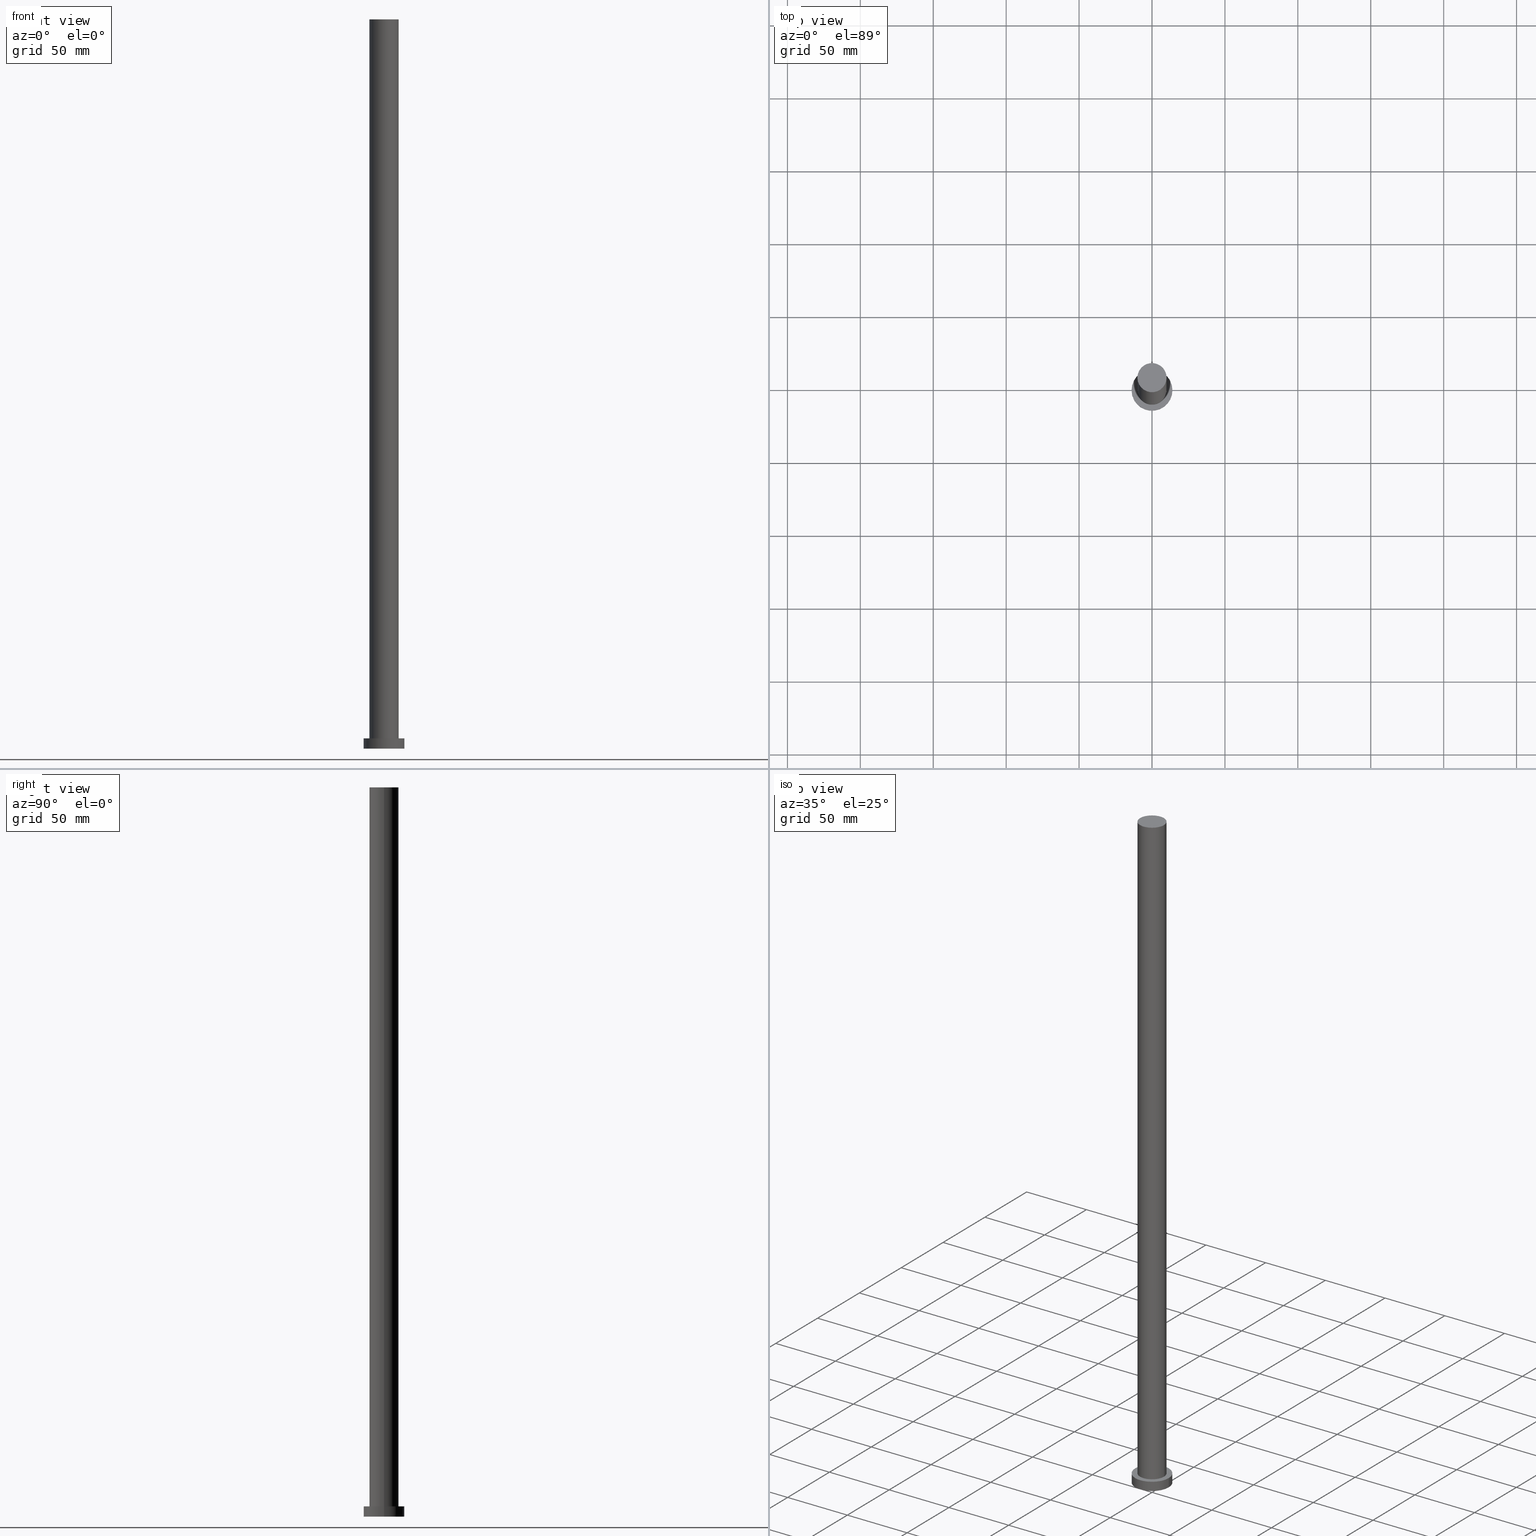
[diagram: canonical four-view strip — front | top / right | iso, engineering-drawing reading convention]
A machine part, canonical four-view strip (front | top / right | iso — engineering-drawing reading convention). The complete STEP part file that produces these views, byte-faithful:
ISO-10303-21;
HEADER;
FILE_DESCRIPTION (( 'STEP AP203' ),
    '1' );
FILE_NAME ('367e.STEP',
    '2023-02-13T08:40:33',
    ( '' ),
    ( '' ),
    'SwSTEP 2.0',
    'SolidWorks 2019',
    '' );
FILE_SCHEMA (( 'CONFIG_CONTROL_DESIGN' ));
ENDSEC;

DATA;
#1 = SHAPE_DEFINITION_REPRESENTATION ( #134, #168 ) ;
#2 = ADVANCED_FACE ( 'NONE', ( #72 ), #164, .T. ) ;
#3 = DIRECTION ( 'NONE',  ( 0.000000000000000000, 0.000000000000000000, 1.000000000000000000 ) ) ;
#4 = AXIS2_PLACEMENT_3D ( 'NONE', #250, #59, #133 ) ;
#5 = CIRCLE ( 'NONE', #131, 14.00000000000000000 ) ;
#6 = ADVANCED_FACE ( 'NONE', ( #26 ), #7, .T. ) ;
#7 = PLANE ( 'NONE',  #69 ) ;
#8 = APPROVAL_DATE_TIME ( #185, #53 ) ;
#9 = ORIENTED_EDGE ( 'NONE', *, *, #23, .F. ) ;
#10 = EDGE_LOOP ( 'NONE', ( #141, #184 ) ) ;
#11 = APPLICATION_PROTOCOL_DEFINITION ( 'international standard', 'config_control_design', 1994, #174 ) ;
#12 = VERTEX_POINT ( 'NONE', #159 ) ;
#13 = APPROVAL_DATE_TIME ( #165, #158 ) ;
#14 = CARTESIAN_POINT ( 'NONE',  ( 10.00000000000000000, 1.224646799147353256E-15, 500.0000000000000000 ) ) ;
#15 = DESIGN_CONTEXT ( 'detailed design', #174, 'design' ) ;
#16 = AXIS2_PLACEMENT_3D ( 'NONE', #47, #254, #85 ) ;
#17 = DIRECTION ( 'NONE',  ( 1.000000000000000000, 0.000000000000000000, 0.000000000000000000 ) ) ;
#18 = CC_DESIGN_PERSON_AND_ORGANIZATION_ASSIGNMENT ( #222, #50, ( #67 ) ) ;
#19 = DIRECTION ( 'NONE',  ( 0.000000000000000000, 0.000000000000000000, 1.000000000000000000 ) ) ;
#20 = ORGANIZATION ( 'NEUR�EN�', 'NEUR�EN�', '' ) ;
#21 = AXIS2_PLACEMENT_3D ( 'NONE', #82, #56, #38 ) ;
#22 = CYLINDRICAL_SURFACE ( 'NONE', #207, 10.00000000000000000 ) ;
#23 = EDGE_CURVE ( 'NONE', #91, #122, #161, .T. ) ;
#24 = APPROVAL_ROLE ( '' ) ;
#25 = VERTEX_POINT ( 'NONE', #99 ) ;
#26 = FACE_OUTER_BOUND ( 'NONE', #94, .T. ) ;
#27 = CARTESIAN_POINT ( 'NONE',  ( 0.000000000000000000, 0.000000000000000000, 7.000000000000000000 ) ) ;
#28 = VERTEX_POINT ( 'NONE', #77 ) ;
#29 = CALENDAR_DATE ( 2023, 13, 2 ) ;
#30 = PERSON_AND_ORGANIZATION_ROLE ( 'design_owner' ) ;
#31 = EDGE_CURVE ( 'NONE', #25, #97, #142, .T. ) ;
#32 = CARTESIAN_POINT ( 'NONE',  ( 0.000000000000000000, 0.000000000000000000, 7.000000000000000000 ) ) ;
#33 = EDGE_CURVE ( 'NONE', #192, #243, #166, .T. ) ;
#34 = DIRECTION ( 'NONE',  ( 1.000000000000000000, 0.000000000000000000, 0.000000000000000000 ) ) ;
#35 = AXIS2_PLACEMENT_3D ( 'NONE', #181, #55, #62 ) ;
#36 = CLOSED_SHELL ( 'NONE', ( #238, #2, #234, #227, #171, #182, #6 ) ) ;
#37 = EDGE_CURVE ( 'NONE', #28, #97, #78, .T. ) ;
#38 = DIRECTION ( 'NONE',  ( 1.000000000000000000, 0.000000000000000000, 0.000000000000000000 ) ) ;
#39 = CARTESIAN_POINT ( 'NONE',  ( -10.00000000000000000, 0.000000000000000000, 500.0000000000000000 ) ) ;
#40 = DATE_TIME_ROLE ( 'classification_date' ) ;
#41 = DIRECTION ( 'NONE',  ( 0.000000000000000000, 0.000000000000000000, 1.000000000000000000 ) ) ;
#42 = EDGE_CURVE ( 'NONE', #243, #122, #90, .T. ) ;
#43 = ORIENTED_EDGE ( 'NONE', *, *, #31, .T. ) ;
#44 = PERSON_AND_ORGANIZATION ( #74, #20 ) ;
#45 = CARTESIAN_POINT ( 'NONE',  ( 0.000000000000000000, 0.000000000000000000, 500.0000000000000000 ) ) ;
#46 = FACE_OUTER_BOUND ( 'NONE', #10, .T. ) ;
#47 = CARTESIAN_POINT ( 'NONE',  ( 0.000000000000000000, 0.000000000000000000, 0.000000000000000000 ) ) ;
#48 = ORIENTED_EDGE ( 'NONE', *, *, #33, .T. ) ;
#49 = EDGE_LOOP ( 'NONE', ( #219, #215, #183, #124 ) ) ;
#50 = PERSON_AND_ORGANIZATION_ROLE ( 'creator' ) ;
#51 = PRODUCT ( '367e', '367e', '', ( #232 ) ) ;
#52 = FACE_BOUND ( 'NONE', #244, .T. ) ;
#53 = APPROVAL ( #230, 'NEUR�EN�' ) ;
#54 = EDGE_CURVE ( 'NONE', #97, #28, #5, .T. ) ;
#55 = DIRECTION ( 'NONE',  ( 0.000000000000000000, 0.000000000000000000, 1.000000000000000000 ) ) ;
#56 = DIRECTION ( 'NONE',  ( 0.000000000000000000, 0.000000000000000000, 1.000000000000000000 ) ) ;
#57 = ORIENTED_EDGE ( 'NONE', *, *, #132, .T. ) ;
#58 = CIRCLE ( 'NONE', #194, 14.00000000000000000 ) ;
#59 = DIRECTION ( 'NONE',  ( -0.000000000000000000, -0.000000000000000000, -1.000000000000000000 ) ) ;
#60 = DATE_AND_TIME ( #81, #104 ) ;
#61 = APPROVAL_ROLE ( '' ) ;
#62 = DIRECTION ( 'NONE',  ( 1.000000000000000000, 0.000000000000000000, -0.000000000000000000 ) ) ;
#63 = DATE_AND_TIME ( #150, #214 ) ;
#64 = DIRECTION ( 'NONE',  ( 1.000000000000000000, 0.000000000000000000, 0.000000000000000000 ) ) ;
#65 = PLANE ( 'NONE',  #173 ) ;
#66 = DIRECTION ( 'NONE',  ( -1.000000000000000000, 0.000000000000000000, 0.000000000000000000 ) ) ;
#67 = PRODUCT_DEFINITION ( 'NEZN�M�', '', #103, #15 ) ;
#68 = CARTESIAN_POINT ( 'NONE',  ( 10.00000000000000000, 1.224646799147353256E-15, 7.000000000000000000 ) ) ;
#69 = AXIS2_PLACEMENT_3D ( 'NONE', #242, #202, #199 ) ;
#70 = CARTESIAN_POINT ( 'NONE',  ( -10.00000000000000000, 0.000000000000000000, 500.0000000000000000 ) ) ;
#71 =( GEOMETRIC_REPRESENTATION_CONTEXT ( 3 ) GLOBAL_UNCERTAINTY_ASSIGNED_CONTEXT ( ( #201 ) ) GLOBAL_UNIT_ASSIGNED_CONTEXT ( ( #107, #255, #155 ) ) REPRESENTATION_CONTEXT ( 'NONE', 'WORKASPACE' ) );
#72 = FACE_OUTER_BOUND ( 'NONE', #49, .T. ) ;
#73 = ORIENTED_EDGE ( 'NONE', *, *, #42, .F. ) ;
#74 = PERSON ( 'NEUR�EN�', 'NEUR�EN�', 'NEUR�EN�', ('NEUR�EN�'), ('NEUR�EN�'), ('NEUR�EN�') ) ;
#75 = CYLINDRICAL_SURFACE ( 'NONE', #212, 14.00000000000000000 ) ;
#76 = PLANE ( 'NONE',  #35 ) ;
#77 = CARTESIAN_POINT ( 'NONE',  ( 14.00000000000000000, 1.714505518806294638E-15, 0.000000000000000000 ) ) ;
#78 = CIRCLE ( 'NONE', #105, 14.00000000000000000 ) ;
#79 = EDGE_LOOP ( 'NONE', ( #9, #180, #48, #144 ) ) ;
#80 = APPROVAL_PERSON_ORGANIZATION ( #253, #53, #24 ) ;
#81 = CALENDAR_DATE ( 2023, 13, 2 ) ;
#82 = CARTESIAN_POINT ( 'NONE',  ( 0.000000000000000000, 0.000000000000000000, 500.0000000000000000 ) ) ;
#83 = DIRECTION ( 'NONE',  ( 1.000000000000000000, 0.000000000000000000, 0.000000000000000000 ) ) ;
#84 = CARTESIAN_POINT ( 'NONE',  ( -14.00000000000000000, 0.000000000000000000, 0.000000000000000000 ) ) ;
#85 = DIRECTION ( 'NONE',  ( 1.000000000000000000, 0.000000000000000000, 0.000000000000000000 ) ) ;
#86 = EDGE_CURVE ( 'NONE', #192, #91, #129, .T. ) ;
#87 = EDGE_CURVE ( 'NONE', #91, #192, #121, .T. ) ;
#88 = SECURITY_CLASSIFICATION_LEVEL ( 'unclassified' ) ;
#89 = DIRECTION ( 'NONE',  ( 1.000000000000000000, 0.000000000000000000, 0.000000000000000000 ) ) ;
#90 = CIRCLE ( 'NONE', #205, 10.00000000000000000 ) ;
#91 = VERTEX_POINT ( 'NONE', #154 ) ;
#92 = FACE_OUTER_BOUND ( 'NONE', #229, .T. ) ;
#93 = CIRCLE ( 'NONE', #235, 10.00000000000000000 ) ;
#94 = EDGE_LOOP ( 'NONE', ( #114, #160 ) ) ;
#95 = APPROVAL_ROLE ( '' ) ;
#96 = ORIENTED_EDGE ( 'NONE', *, *, #156, .T. ) ;
#97 = VERTEX_POINT ( 'NONE', #84 ) ;
#98 = DIRECTION ( 'NONE',  ( 1.000000000000000000, 0.000000000000000000, 0.000000000000000000 ) ) ;
#99 = CARTESIAN_POINT ( 'NONE',  ( -14.00000000000000000, 0.000000000000000000, 7.000000000000000000 ) ) ;
#100 = CARTESIAN_POINT ( 'NONE',  ( 0.000000000000000000, 0.000000000000000000, 7.000000000000000000 ) ) ;
#101 = CARTESIAN_POINT ( 'NONE',  ( 0.000000000000000000, 0.000000000000000000, 7.000000000000000000 ) ) ;
#102 = CC_DESIGN_DATE_AND_TIME_ASSIGNMENT ( #60, #40, ( #251 ) ) ;
#103 = PRODUCT_DEFINITION_FORMATION_WITH_SPECIFIED_SOURCE ( 'LIBOVOLN�', '', #51, .NOT_KNOWN. ) ;
#104 = LOCAL_TIME ( 9, 40, 33.00000000000000000, #252 ) ;
#105 = AXIS2_PLACEMENT_3D ( 'NONE', #248, #130, #64 ) ;
#106 = PERSON_AND_ORGANIZATION ( #74, #20 ) ;
#107 =( LENGTH_UNIT ( ) NAMED_UNIT ( * ) SI_UNIT ( .MILLI., .METRE. ) );
#108 = CARTESIAN_POINT ( 'NONE',  ( 14.00000000000000000, 1.714505518806294638E-15, 7.000000000000000000 ) ) ;
#109 = DIRECTION ( 'NONE',  ( -0.000000000000000000, -0.000000000000000000, -1.000000000000000000 ) ) ;
#110 = EDGE_LOOP ( 'NONE', ( #96, #57 ) ) ;
#111 = ORIENTED_EDGE ( 'NONE', *, *, #224, .F. ) ;
#112 = PERSON_AND_ORGANIZATION ( #74, #20 ) ;
#113 = DIRECTION ( 'NONE',  ( -0.000000000000000000, -0.000000000000000000, -1.000000000000000000 ) ) ;
#114 = ORIENTED_EDGE ( 'NONE', *, *, #86, .T. ) ;
#115 = PERSON_AND_ORGANIZATION ( #74, #20 ) ;
#116 = DIRECTION ( 'NONE',  ( 0.000000000000000000, 0.000000000000000000, 1.000000000000000000 ) ) ;
#117 = FACE_OUTER_BOUND ( 'NONE', #110, .T. ) ;
#118 = CARTESIAN_POINT ( 'NONE',  ( 0.000000000000000000, 0.000000000000000000, 0.000000000000000000 ) ) ;
#119 = CC_DESIGN_APPROVAL ( #53, ( #251 ) ) ;
#120 = PRODUCT_RELATED_PRODUCT_CATEGORY ( 'detail', '', ( #51 ) ) ;
#121 = CIRCLE ( 'NONE', #163, 10.00000000000000000 ) ;
#122 = VERTEX_POINT ( 'NONE', #68 ) ;
#123 = FACE_OUTER_BOUND ( 'NONE', #127, .T. ) ;
#124 = ORIENTED_EDGE ( 'NONE', *, *, #31, .F. ) ;
#125 = COORDINATED_UNIVERSAL_TIME_OFFSET ( 1, 0, .AHEAD. ) ;
#126 = CC_DESIGN_SECURITY_CLASSIFICATION ( #251, ( #103 ) ) ;
#127 = EDGE_LOOP ( 'NONE', ( #128, #200, #151, #220 ) ) ;
#128 = ORIENTED_EDGE ( 'NONE', *, *, #87, .F. ) ;
#129 = CIRCLE ( 'NONE', #21, 10.00000000000000000 ) ;
#130 = DIRECTION ( 'NONE',  ( 0.000000000000000000, 0.000000000000000000, 1.000000000000000000 ) ) ;
#131 = AXIS2_PLACEMENT_3D ( 'NONE', #118, #41, #17 ) ;
#132 = EDGE_CURVE ( 'NONE', #12, #25, #58, .T. ) ;
#133 = DIRECTION ( 'NONE',  ( -1.000000000000000000, 0.000000000000000000, 0.000000000000000000 ) ) ;
#134 = PRODUCT_DEFINITION_SHAPE ( 'NONE', 'NONE',  #67 ) ;
#135 = DATE_TIME_ROLE ( 'creation_date' ) ;
#136 = CARTESIAN_POINT ( 'NONE',  ( 0.000000000000000000, 0.000000000000000000, 7.000000000000000000 ) ) ;
#137 = CARTESIAN_POINT ( 'NONE',  ( 0.000000000000000000, 0.000000000000000000, 7.000000000000000000 ) ) ;
#138 = CARTESIAN_POINT ( 'NONE',  ( -10.00000000000000000, 0.000000000000000000, 7.000000000000000000 ) ) ;
#139 = COORDINATED_UNIVERSAL_TIME_OFFSET ( 1, 0, .AHEAD. ) ;
#140 = DIRECTION ( 'NONE',  ( -0.000000000000000000, -0.000000000000000000, -1.000000000000000000 ) ) ;
#141 = ORIENTED_EDGE ( 'NONE', *, *, #54, .F. ) ;
#142 = LINE ( 'NONE', #218, #191 ) ;
#143 = EDGE_CURVE ( 'NONE', #12, #28, #157, .T. ) ;
#144 = ORIENTED_EDGE ( 'NONE', *, *, #42, .T. ) ;
#145 = CC_DESIGN_APPROVAL ( #158, ( #67 ) ) ;
#146 = CYLINDRICAL_SURFACE ( 'NONE', #4, 10.00000000000000000 ) ;
#147 = MANIFOLD_SOLID_BREP ( 'P�idat vysunut�m3', #36 ) ;
#148 = PERSON_AND_ORGANIZATION_ROLE ( 'design_supplier' ) ;
#149 = APPROVAL_PERSON_ORGANIZATION ( #206, #213, #61 ) ;
#150 = CALENDAR_DATE ( 2023, 13, 2 ) ;
#151 = ORIENTED_EDGE ( 'NONE', *, *, #224, .T. ) ;
#152 = LOCAL_TIME ( 9, 40, 33.00000000000000000, #125 ) ;
#153 = DATE_AND_TIME ( #193, #170 ) ;
#154 = CARTESIAN_POINT ( 'NONE',  ( 10.00000000000000000, 1.224646799147353256E-15, 500.0000000000000000 ) ) ;
#155 =( NAMED_UNIT ( * ) SI_UNIT ( $, .STERADIAN. ) SOLID_ANGLE_UNIT ( ) );
#156 = EDGE_CURVE ( 'NONE', #25, #12, #225, .T. ) ;
#157 = LINE ( 'NONE', #108, #178 ) ;
#158 = APPROVAL ( #239, 'NEUR�EN�' ) ;
#159 = CARTESIAN_POINT ( 'NONE',  ( 14.00000000000000000, 1.714505518806294638E-15, 7.000000000000000000 ) ) ;
#160 = ORIENTED_EDGE ( 'NONE', *, *, #87, .T. ) ;
#161 = LINE ( 'NONE', #14, #198 ) ;
#162 = DIRECTION ( 'NONE',  ( 0.000000000000000000, 0.000000000000000000, 1.000000000000000000 ) ) ;
#163 = AXIS2_PLACEMENT_3D ( 'NONE', #188, #19, #83 ) ;
#164 = CYLINDRICAL_SURFACE ( 'NONE', #223, 14.00000000000000000 ) ;
#165 = DATE_AND_TIME ( #29, #152 ) ;
#166 = LINE ( 'NONE', #70, #187 ) ;
#167 = CC_DESIGN_PERSON_AND_ORGANIZATION_ASSIGNMENT ( #106, #236, ( #251 ) ) ;
#168 = ADVANCED_BREP_SHAPE_REPRESENTATION ( '367e', ( #147, #16 ), #71 ) ;
#169 = FACE_OUTER_BOUND ( 'NONE', #79, .T. ) ;
#170 = LOCAL_TIME ( 9, 40, 33.00000000000000000, #208 ) ;
#171 = ADVANCED_FACE ( 'NONE', ( #46 ), #76, .F. ) ;
#172 = APPROVAL_STATUS ( 'not_yet_approved' ) ;
#173 = AXIS2_PLACEMENT_3D ( 'NONE', #195, #162, #177 ) ;
#174 = APPLICATION_CONTEXT ( 'configuration controlled 3d designs of mechanical parts and assemblies' ) ;
#175 = DIRECTION ( 'NONE',  ( -1.000000000000000000, 0.000000000000000000, 0.000000000000000000 ) ) ;
#176 = CC_DESIGN_APPROVAL ( #213, ( #103 ) ) ;
#177 = DIRECTION ( 'NONE',  ( 1.000000000000000000, 0.000000000000000000, -0.000000000000000000 ) ) ;
#178 = VECTOR ( 'NONE', #109, 1000.000000000000000 ) ;
#179 = DIRECTION ( 'NONE',  ( -1.000000000000000000, 0.000000000000000000, 0.000000000000000000 ) ) ;
#180 = ORIENTED_EDGE ( 'NONE', *, *, #86, .F. ) ;
#181 = CARTESIAN_POINT ( 'NONE',  ( 0.000000000000000000, 0.000000000000000000, 0.000000000000000000 ) ) ;
#182 = ADVANCED_FACE ( 'NONE', ( #169 ), #146, .T. ) ;
#183 = ORIENTED_EDGE ( 'NONE', *, *, #37, .T. ) ;
#184 = ORIENTED_EDGE ( 'NONE', *, *, #37, .F. ) ;
#185 = DATE_AND_TIME ( #240, #247 ) ;
#186 = DIRECTION ( 'NONE',  ( -0.000000000000000000, -0.000000000000000000, -1.000000000000000000 ) ) ;
#187 = VECTOR ( 'NONE', #140, 1000.000000000000000 ) ;
#188 = CARTESIAN_POINT ( 'NONE',  ( 0.000000000000000000, 0.000000000000000000, 500.0000000000000000 ) ) ;
#189 = PERSON_AND_ORGANIZATION_ROLE ( 'creator' ) ;
#190 = PERSON_AND_ORGANIZATION ( #74, #20 ) ;
#191 = VECTOR ( 'NONE', #113, 1000.000000000000000 ) ;
#192 = VERTEX_POINT ( 'NONE', #39 ) ;
#193 = CALENDAR_DATE ( 2023, 13, 2 ) ;
#194 = AXIS2_PLACEMENT_3D ( 'NONE', #137, #196, #211 ) ;
#195 = CARTESIAN_POINT ( 'NONE',  ( 0.000000000000000000, 0.000000000000000000, 7.000000000000000000 ) ) ;
#196 = DIRECTION ( 'NONE',  ( 0.000000000000000000, 0.000000000000000000, 1.000000000000000000 ) ) ;
#197 = ORIENTED_EDGE ( 'NONE', *, *, #143, .F. ) ;
#198 = VECTOR ( 'NONE', #186, 1000.000000000000000 ) ;
#199 = DIRECTION ( 'NONE',  ( 1.000000000000000000, 0.000000000000000000, -0.000000000000000000 ) ) ;
#200 = ORIENTED_EDGE ( 'NONE', *, *, #23, .T. ) ;
#201 = UNCERTAINTY_MEASURE_WITH_UNIT (LENGTH_MEASURE( 1.000000000000000082E-05 ), #107, 'distance_accuracy_value', 'NONE');
#202 = DIRECTION ( 'NONE',  ( 0.000000000000000000, 0.000000000000000000, 1.000000000000000000 ) ) ;
#203 = CC_DESIGN_DATE_AND_TIME_ASSIGNMENT ( #63, #135, ( #67 ) ) ;
#204 = APPROVAL_PERSON_ORGANIZATION ( #115, #158, #95 ) ;
#205 = AXIS2_PLACEMENT_3D ( 'NONE', #101, #249, #34 ) ;
#206 = PERSON_AND_ORGANIZATION ( #74, #20 ) ;
#207 = AXIS2_PLACEMENT_3D ( 'NONE', #45, #210, #66 ) ;
#208 = COORDINATED_UNIVERSAL_TIME_OFFSET ( 1, 0, .AHEAD. ) ;
#209 = APPROVAL_DATE_TIME ( #153, #213 ) ;
#210 = DIRECTION ( 'NONE',  ( -0.000000000000000000, -0.000000000000000000, -1.000000000000000000 ) ) ;
#211 = DIRECTION ( 'NONE',  ( 1.000000000000000000, 0.000000000000000000, 0.000000000000000000 ) ) ;
#212 = AXIS2_PLACEMENT_3D ( 'NONE', #27, #246, #175 ) ;
#213 = APPROVAL ( #172, 'NEUR�EN�' ) ;
#214 = LOCAL_TIME ( 9, 40, 33.00000000000000000, #228 ) ;
#215 = ORIENTED_EDGE ( 'NONE', *, *, #143, .T. ) ;
#216 = ORIENTED_EDGE ( 'NONE', *, *, #54, .T. ) ;
#217 = CC_DESIGN_PERSON_AND_ORGANIZATION_ASSIGNMENT ( #112, #30, ( #51 ) ) ;
#218 = CARTESIAN_POINT ( 'NONE',  ( -14.00000000000000000, 0.000000000000000000, 7.000000000000000000 ) ) ;
#219 = ORIENTED_EDGE ( 'NONE', *, *, #132, .F. ) ;
#220 = ORIENTED_EDGE ( 'NONE', *, *, #33, .F. ) ;
#221 = DIRECTION ( 'NONE',  ( -0.000000000000000000, -0.000000000000000000, -1.000000000000000000 ) ) ;
#222 = PERSON_AND_ORGANIZATION ( #74, #20 ) ;
#223 = AXIS2_PLACEMENT_3D ( 'NONE', #32, #221, #179 ) ;
#224 = EDGE_CURVE ( 'NONE', #122, #243, #93, .T. ) ;
#225 = CIRCLE ( 'NONE', #231, 14.00000000000000000 ) ;
#226 = CC_DESIGN_PERSON_AND_ORGANIZATION_ASSIGNMENT ( #190, #148, ( #103 ) ) ;
#227 = ADVANCED_FACE ( 'NONE', ( #52, #117 ), #65, .T. ) ;
#228 = COORDINATED_UNIVERSAL_TIME_OFFSET ( 1, 0, .AHEAD. ) ;
#229 = EDGE_LOOP ( 'NONE', ( #197, #245, #43, #216 ) ) ;
#230 = APPROVAL_STATUS ( 'not_yet_approved' ) ;
#231 = AXIS2_PLACEMENT_3D ( 'NONE', #136, #3, #89 ) ;
#232 = MECHANICAL_CONTEXT ( 'NONE', #233, 'mechanical' ) ;
#233 = APPLICATION_CONTEXT ( 'configuration controlled 3d designs of mechanical parts and assemblies' ) ;
#234 = ADVANCED_FACE ( 'NONE', ( #92 ), #75, .T. ) ;
#235 = AXIS2_PLACEMENT_3D ( 'NONE', #100, #116, #98 ) ;
#236 = PERSON_AND_ORGANIZATION_ROLE ( 'classification_officer' ) ;
#237 = APPLICATION_PROTOCOL_DEFINITION ( 'international standard', 'config_control_design', 1994, #233 ) ;
#238 = ADVANCED_FACE ( 'NONE', ( #123 ), #22, .T. ) ;
#239 = APPROVAL_STATUS ( 'not_yet_approved' ) ;
#240 = CALENDAR_DATE ( 2023, 13, 2 ) ;
#241 = CC_DESIGN_PERSON_AND_ORGANIZATION_ASSIGNMENT ( #44, #189, ( #103 ) ) ;
#242 = CARTESIAN_POINT ( 'NONE',  ( 0.000000000000000000, 0.000000000000000000, 500.0000000000000000 ) ) ;
#243 = VERTEX_POINT ( 'NONE', #138 ) ;
#244 = EDGE_LOOP ( 'NONE', ( #73, #111 ) ) ;
#245 = ORIENTED_EDGE ( 'NONE', *, *, #156, .F. ) ;
#246 = DIRECTION ( 'NONE',  ( -0.000000000000000000, -0.000000000000000000, -1.000000000000000000 ) ) ;
#247 = LOCAL_TIME ( 9, 40, 33.00000000000000000, #139 ) ;
#248 = CARTESIAN_POINT ( 'NONE',  ( 0.000000000000000000, 0.000000000000000000, 0.000000000000000000 ) ) ;
#249 = DIRECTION ( 'NONE',  ( 0.000000000000000000, 0.000000000000000000, 1.000000000000000000 ) ) ;
#250 = CARTESIAN_POINT ( 'NONE',  ( 0.000000000000000000, 0.000000000000000000, 500.0000000000000000 ) ) ;
#251 = SECURITY_CLASSIFICATION ( '', '', #88 ) ;
#252 = COORDINATED_UNIVERSAL_TIME_OFFSET ( 1, 0, .AHEAD. ) ;
#253 = PERSON_AND_ORGANIZATION ( #74, #20 ) ;
#254 = DIRECTION ( 'NONE',  ( 0.000000000000000000, 0.000000000000000000, 1.000000000000000000 ) ) ;
#255 =( NAMED_UNIT ( * ) PLANE_ANGLE_UNIT ( ) SI_UNIT ( $, .RADIAN. ) );
ENDSEC;
END-ISO-10303-21;
